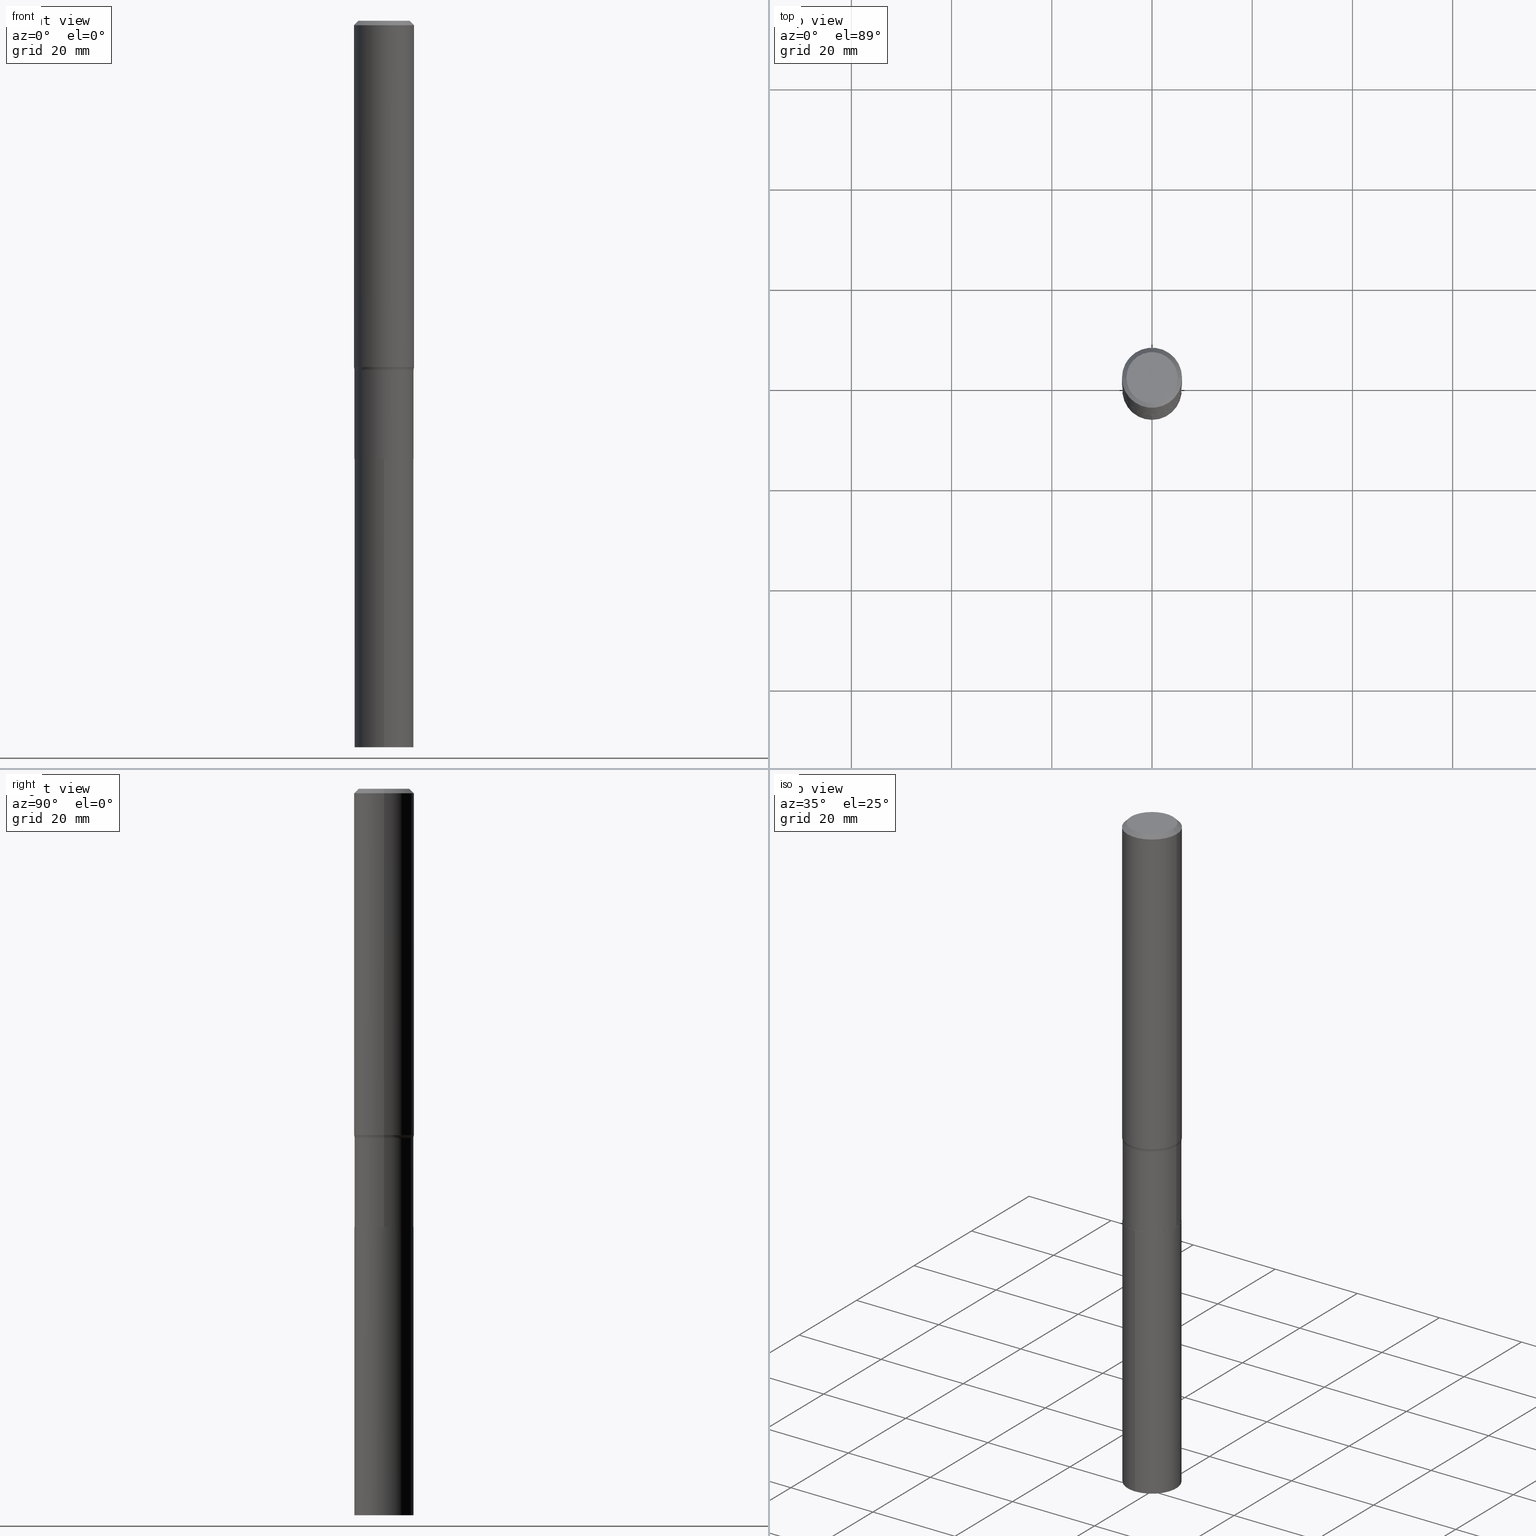
[diagram: canonical four-view strip — front | top / right | iso, engineering-drawing reading convention]
A machine part, canonical four-view strip (front | top / right | iso — engineering-drawing reading convention). The complete STEP part file that produces these views, byte-faithful:
ISO-10303-21;
HEADER;
FILE_DESCRIPTION (( 'STEP AP203' ),
    '1' );
FILE_NAME ('67906.STEP',
    '2024-04-19T17:01:46',
    ( '' ),
    ( '' ),
    'SwSTEP 2.0',
    'SolidWorks 2023',
    '' );
FILE_SCHEMA (( 'CONFIG_CONTROL_DESIGN' ));
ENDSEC;

DATA;
#1 = DIRECTION ( 'NONE',  ( -6.982962677686265922E-15, -1.000000000000000000, 2.351999994545211393E-15 ) ) ;
#2 = DATE_AND_TIME ( #329, #253 ) ;
#3 = ADVANCED_FACE ( 'NONE', ( #224 ), #292, .T. ) ;
#4 = DIRECTION ( 'NONE',  ( -2.445468806185136877E-29, 3.491481338843145188E-15, 1.000000000000000000 ) ) ;
#5 = CIRCLE ( 'NONE', #441, 0.2323000000000000065 ) ;
#6 = DIRECTION ( 'NONE',  ( -2.445459373819195632E-29, 3.491494846528029664E-15, 1.000000000000000000 ) ) ;
#7 = EDGE_LOOP ( 'NONE', ( #408, #118, #424, #368 ) ) ;
#8 = EDGE_CURVE ( 'NONE', #22, #366, #183, .T. ) ;
#9 = DIRECTION ( 'NONE',  ( 1.000000000000000000, -6.982962677686266711E-15, 4.876176775795936353E-29 ) ) ;
#10 = DIRECTION ( 'NONE',  ( -2.445468806185136597E-29, 3.491481338843145583E-15, 1.000000000000000000 ) ) ;
#11 = CARTESIAN_POINT ( 'NONE',  ( 8.423906396665941599E-29, -1.202710576791298553E-14, -3.444700000000000539 ) ) ;
#12 = DIRECTION ( 'NONE',  ( -2.445468806185136597E-29, 3.491481338843145583E-15, 1.000000000000000000 ) ) ;
#13 = ORIENTED_EDGE ( 'NONE', *, *, #388, .T. ) ;
#14 = ORIENTED_EDGE ( 'NONE', *, *, #8, .T. ) ;
#15 = DIRECTION ( 'NONE',  ( -2.445468806185136597E-29, 3.491481338843145583E-15, 1.000000000000000000 ) ) ;
#16 = DIRECTION ( 'NONE',  ( -1.000000000000000000, 6.982962677686266711E-15, 0.000000000000000000 ) ) ;
#17 = AXIS2_PLACEMENT_3D ( 'NONE', #234, #405, #372 ) ;
#18 = ADVANCED_FACE ( 'NONE', ( #392 ), #47, .T. ) ;
#19 = CARTESIAN_POINT ( 'NONE',  ( 0.000000000000000000, 0.000000000000000000, 0.000000000000000000 ) ) ;
#20 = ORIENTED_EDGE ( 'NONE', *, *, #93, .F. ) ;
#21 = APPROVAL ( #293, 'UNSPECIFIED' ) ;
#22 = VERTEX_POINT ( 'NONE', #78 ) ;
#23 = CARTESIAN_POINT ( 'NONE',  ( 8.423906396665941599E-29, -1.202710576791298553E-14, -3.444700000000000539 ) ) ;
#24 = EDGE_LOOP ( 'NONE', ( #238, #114, #28, #239 ) ) ;
#25 = APPROVAL_ROLE ( '' ) ;
#26 = AXIS2_PLACEMENT_3D ( 'NONE', #360, #411, #195 ) ;
#27 = AXIS2_PLACEMENT_3D ( 'NONE', #23, #199, #91 ) ;
#28 = ORIENTED_EDGE ( 'NONE', *, *, #352, .F. ) ;
#29 = DIRECTION ( 'NONE',  ( 1.000000000000000000, -6.982962677686266711E-15, 4.876176775795936353E-29 ) ) ;
#30 = CARTESIAN_POINT ( 'NONE',  ( 8.423906396665941599E-29, -1.202710576791298553E-14, -3.444700000000000539 ) ) ;
#31 = FACE_OUTER_BOUND ( 'NONE', #463, .T. ) ;
#32 = AXIS2_PLACEMENT_3D ( 'NONE', #325, #115, #1 ) ;
#33 =( GEOMETRIC_REPRESENTATION_CONTEXT ( 3 ) GLOBAL_UNCERTAINTY_ASSIGNED_CONTEXT ( ( #258 ) ) GLOBAL_UNIT_ASSIGNED_CONTEXT ( ( #394, #80, #376 ) ) REPRESENTATION_CONTEXT ( 'NONE', 'WORKASPACE' ) );
#34 = CIRCLE ( 'NONE', #340, 0.2323000000000000065 ) ;
#35 = DIRECTION ( 'NONE',  ( -2.445459373819195632E-29, 3.491494846528030059E-15, 1.000000000000000000 ) ) ;
#36 = CARTESIAN_POINT ( 'NONE',  ( -1.622142230026380258E-15, -0.2323000000000199350, -5.708700000000000330 ) ) ;
#37 = CALENDAR_DATE ( 2024, 19, 4 ) ;
#38 = EDGE_CURVE ( 'NONE', #22, #87, #406, .T. ) ;
#39 = ORIENTED_EDGE ( 'NONE', *, *, #314, .F. ) ;
#40 = DIRECTION ( 'NONE',  ( -6.982962677686266711E-15, -1.000000000000000000, 3.491481338843145583E-15 ) ) ;
#41 = AXIS2_PLACEMENT_3D ( 'NONE', #191, #12, #132 ) ;
#42 = AXIS2_PLACEMENT_3D ( 'NONE', #65, #453, #384 ) ;
#43 = CC_DESIGN_SECURITY_CLASSIFICATION ( #289, ( #333 ) ) ;
#44 = APPROVAL_DATE_TIME ( #227, #64 ) ;
#45 = ORIENTED_EDGE ( 'NONE', *, *, #143, .T. ) ;
#46 = APPLICATION_PROTOCOL_DEFINITION ( 'international standard', 'config_control_design', 1994, #358 ) ;
#47 = CONICAL_SURFACE ( 'NONE', #252, 0.2361999999999999933, 0.7853981633974447263 ) ;
#48 = CIRCLE ( 'NONE', #378, 0.2322999999999998955 ) ;
#49 = CC_DESIGN_APPROVAL ( #287, ( #289 ) ) ;
#50 = MANIFOLD_SOLID_BREP ( 'Body-Move/Copy2[1]', #165 ) ;
#51 = CARTESIAN_POINT ( 'NONE',  ( -4.791407986167173419E-29, -4.678554425677435978E-14, -5.708700000000000330 ) ) ;
#52 = ORIENTED_EDGE ( 'NONE', *, *, #403, .T. ) ;
#53 = CALENDAR_DATE ( 2024, 19, 4 ) ;
#54 = LINE ( 'NONE', #418, #106 ) ;
#55 = FACE_OUTER_BOUND ( 'NONE', #24, .T. ) ;
#56 = VECTOR ( 'NONE', #375, 39.37007874015748143 ) ;
#57 = EDGE_CURVE ( 'NONE', #84, #87, #186, .T. ) ;
#58 = CARTESIAN_POINT ( 'NONE',  ( 8.422683662262848798E-29, -1.202536002724356323E-14, -3.444200000000000372 ) ) ;
#59 = LINE ( 'NONE', #332, #212 ) ;
#60 = ORIENTED_EDGE ( 'NONE', *, *, #255, .T. ) ;
#61 = PRODUCT_DEFINITION_SHAPE ( 'NONE', 'NONE',  #247 ) ;
#62 = DIRECTION ( 'NONE',  ( 1.000000000000000000, -6.982962677686265922E-15, 4.876176775795935793E-29 ) ) ;
#63 = ORIENTED_EDGE ( 'NONE', *, *, #154, .F. ) ;
#64 = APPROVAL ( #216, 'UNSPECIFIED' ) ;
#65 = CARTESIAN_POINT ( 'NONE',  ( 1.396042641899260512E-28, -1.993185010045244784E-14, -5.708700000000001218 ) ) ;
#66 = CIRCLE ( 'NONE', #17, 0.2318000000000000060 ) ;
#67 = CC_DESIGN_APPROVAL ( #21, ( #333 ) ) ;
#68 = DIRECTION ( 'NONE',  ( -2.445459373819195632E-29, 3.491494846528029664E-15, 1.000000000000000000 ) ) ;
#69 = PLANE ( 'NONE',  #455 ) ;
#70 = CARTESIAN_POINT ( 'NONE',  ( -0.2007700000000000040, 1.463821008716676943E-15, 4.096137381438094301E-18 ) ) ;
#71 = DIRECTION ( 'NONE',  ( -6.982962677686265922E-15, -1.000000000000000000, 2.351999994545211393E-15 ) ) ;
#72 = EDGE_CURVE ( 'NONE', #229, #157, #296, .T. ) ;
#73 = DIRECTION ( 'NONE',  ( 1.000000000000000000, -6.982962677686269866E-15, 0.000000000000000000 ) ) ;
#74 = PERSON_AND_ORGANIZATION ( #197, #153 ) ;
#75 = EDGE_CURVE ( 'NONE', #22, #268, #324, .T. ) ;
#76 = CIRCLE ( 'NONE', #364, 0.2361999999999999933 ) ;
#77 = DIRECTION ( 'NONE',  ( 1.000000000000000000, -6.982962677686257244E-15, 0.000000000000000000 ) ) ;
#78 = CARTESIAN_POINT ( 'NONE',  ( -0.2362000000000003264, -7.826649636953230202E-15, -2.722326329823066882 ) ) ;
#79 = DATE_TIME_ROLE ( 'creation_date' ) ;
#80 =( NAMED_UNIT ( * ) PLANE_ANGLE_UNIT ( ) SI_UNIT ( $, .RADIAN. ) );
#81 = ORIENTED_EDGE ( 'NONE', *, *, #93, .T. ) ;
#82 = PERSON_AND_ORGANIZATION ( #197, #153 ) ;
#83 = VECTOR ( 'NONE', #204, 39.37007874015748143 ) ;
#84 = VERTEX_POINT ( 'NONE', #338 ) ;
#85 = PERSON_AND_ORGANIZATION ( #197, #153 ) ;
#86 = EDGE_LOOP ( 'NONE', ( #178, #447 ) ) ;
#87 = VERTEX_POINT ( 'NONE', #373 ) ;
#88 = ORIENTED_EDGE ( 'NONE', *, *, #233, .T. ) ;
#89 = AXIS2_PLACEMENT_3D ( 'NONE', #51, #68, #210 ) ;
#90 = APPROVAL_PERSON_ORGANIZATION ( #131, #287, #25 ) ;
#91 = DIRECTION ( 'NONE',  ( 6.982962677686265922E-15, 1.000000000000000000, -3.491494846528029664E-15 ) ) ;
#92 = CARTESIAN_POINT ( 'NONE',  ( 6.657364119838780176E-29, -9.504951578818589752E-15, -2.722326329823066882 ) ) ;
#93 = EDGE_CURVE ( 'NONE', #328, #366, #95, .T. ) ;
#94 = FACE_OUTER_BOUND ( 'NONE', #291, .T. ) ;
#95 = CIRCLE ( 'NONE', #41, 0.2361999999999999933 ) ;
#96 = DIRECTION ( 'NONE',  ( 0.7071067811865450192, -7.319954787623246579E-15, -0.7071067811865500152 ) ) ;
#97 = CARTESIAN_POINT ( 'NONE',  ( 6.657364119838780176E-29, -9.504951578818589752E-15, -2.722326329823066882 ) ) ;
#98 = VERTEX_POINT ( 'NONE', #231 ) ;
#99 = DATE_AND_TIME ( #53, #189 ) ;
#100 = DIRECTION ( 'NONE',  ( -2.445459373819195632E-29, 3.491494846528030059E-15, 1.000000000000000000 ) ) ;
#101 = DIRECTION ( 'NONE',  ( -6.982962677686265922E-15, -1.000000000000000000, 2.351999994545211393E-15 ) ) ;
#102 = DESIGN_CONTEXT ( 'detailed design', #358, 'design' ) ;
#103 = CARTESIAN_POINT ( 'NONE',  ( 8.422683662262848798E-29, -1.202536002724356323E-14, -3.444200000000000372 ) ) ;
#104 = ORIENTED_EDGE ( 'NONE', *, *, #437, .T. ) ;
#105 = FACE_OUTER_BOUND ( 'NONE', #410, .T. ) ;
#106 = VECTOR ( 'NONE', #96, 39.37007874015748143 ) ;
#107 = CARTESIAN_POINT ( 'NONE',  ( 1.650590775170852603E-15, 0.2322999999999879883, -3.444700000000000983 ) ) ;
#108 = DIRECTION ( 'NONE',  ( -2.445468806185136597E-29, 3.491481338843145583E-15, 1.000000000000000000 ) ) ;
#109 = CC_DESIGN_DATE_AND_TIME_ASSIGNMENT ( #2, #79, ( #247 ) ) ;
#110 = SECURITY_CLASSIFICATION_LEVEL ( 'unclassified' ) ;
#111 = MECHANICAL_CONTEXT ( 'NONE', #451, 'mechanical' ) ;
#112 = AXIS2_PLACEMENT_3D ( 'NONE', #250, #207, #203 ) ;
#113 = DIRECTION ( 'NONE',  ( 1.000000000000000000, 0.000000000000000000, 0.000000000000000000 ) ) ;
#114 = ORIENTED_EDGE ( 'NONE', *, *, #354, .T. ) ;
#115 = DIRECTION ( 'NONE',  ( -2.445459373819195632E-29, 3.491494846528030059E-15, 1.000000000000000000 ) ) ;
#116 = DATE_AND_TIME ( #37, #310 ) ;
#117 = CIRCLE ( 'NONE', #315, 0.2362000000000003264 ) ;
#118 = ORIENTED_EDGE ( 'NONE', *, *, #423, .F. ) ;
#119 = AXIS2_PLACEMENT_3D ( 'NONE', #30, #211, #62 ) ;
#120 = CARTESIAN_POINT ( 'NONE',  ( -0.3122999999999999110, -7.372074274023329378E-15, -2.746999999999999886 ) ) ;
#121 = ORIENTED_EDGE ( 'NONE', *, *, #72, .F. ) ;
#122 = EDGE_LOOP ( 'NONE', ( #259, #201, #88, #257 ) ) ;
#123 = DIRECTION ( 'NONE',  ( -2.445468806185136597E-29, 3.491481338843145583E-15, 1.000000000000000000 ) ) ;
#124 = FACE_OUTER_BOUND ( 'NONE', #279, .T. ) ;
#125 = DIRECTION ( 'NONE',  ( -2.445468806185136597E-29, 3.491481338843145583E-15, 1.000000000000000000 ) ) ;
#126 = ADVANCED_FACE ( 'NONE', ( #305 ), #459, .T. ) ;
#127 = DIRECTION ( 'NONE',  ( 1.000000000000000000, -6.982962677686266711E-15, 4.876140833081945105E-29 ) ) ;
#128 = TOROIDAL_SURFACE ( 'NONE', #371, 0.3122999999999999110, 0.08000000000000000167 ) ;
#129 = ORIENTED_EDGE ( 'NONE', *, *, #439, .F. ) ;
#130 = EDGE_CURVE ( 'NONE', #435, #98, #262, .T. ) ;
#131 = PERSON_AND_ORGANIZATION ( #197, #153 ) ;
#132 = DIRECTION ( 'NONE',  ( 1.000000000000000000, -6.982962677686266711E-15, 0.000000000000000000 ) ) ;
#133 = EDGE_LOOP ( 'NONE', ( #244, #163, #460, #104 ) ) ;
#134 = CYLINDRICAL_SURFACE ( 'NONE', #317, 0.2362000000000001598 ) ;
#135 = DIRECTION ( 'NONE',  ( 1.000000000000000000, -6.982962677686266711E-15, 4.876176775795935232E-29 ) ) ;
#136 = ADVANCED_FACE ( 'NONE', ( #94 ), #303, .T. ) ;
#137 = CARTESIAN_POINT ( 'NONE',  ( -1.622142230026435478E-15, -0.2323000000000120246, -3.444700000000000095 ) ) ;
#138 = LINE ( 'NONE', #251, #304 ) ;
#139 = DIRECTION ( 'NONE',  ( 2.438088387897960049E-29, -3.491481338843145188E-15, -1.000000000000000000 ) ) ;
#140 = CARTESIAN_POINT ( 'NONE',  ( 8.423906396665941599E-29, -1.202710576791298553E-14, -3.444700000000000539 ) ) ;
#141 = CYLINDRICAL_SURFACE ( 'NONE', #112, 0.2322999999999999510 ) ;
#142 = AXIS2_PLACEMENT_3D ( 'NONE', #350, #208, #29 ) ;
#143 = EDGE_CURVE ( 'NONE', #268, #22, #117, .T. ) ;
#144 = DIRECTION ( 'NONE',  ( -2.445468806185136597E-29, 3.491481338843145583E-15, 1.000000000000000000 ) ) ;
#145 = APPLICATION_PROTOCOL_DEFINITION ( 'international standard', 'config_control_design', 1994, #451 ) ;
#146 = EDGE_LOOP ( 'NONE', ( #228, #379, #52, #467 ) ) ;
#147 = CIRCLE ( 'NONE', #399, 0.2323000000000000065 ) ;
#148 = CALENDAR_DATE ( 2024, 19, 4 ) ;
#149 = LOCAL_TIME ( 13, 1, 46.00000000000000000, #256 ) ;
#150 = PERSON_AND_ORGANIZATION ( #197, #153 ) ;
#151 = VERTEX_POINT ( 'NONE', #242 ) ;
#152 = AXIS2_PLACEMENT_3D ( 'NONE', #335, #200, #275 ) ;
#153 = ORGANIZATION ( 'UNSPECIFIED', 'UNSPECIFIED', '' ) ;
#154 = EDGE_CURVE ( 'NONE', #229, #365, #59, .T. ) ;
#155 = CARTESIAN_POINT ( 'NONE',  ( 0.2007700000000000040, -1.560767496960719869E-15, 4.096137381458473721E-18 ) ) ;
#156 = CARTESIAN_POINT ( 'NONE',  ( 1.650590775170824402E-15, 0.2322999999999800502, -5.708700000000002106 ) ) ;
#157 = VERTEX_POINT ( 'NONE', #156 ) ;
#158 = DIRECTION ( 'NONE',  ( -2.445468806185136597E-29, 3.491481338843145583E-15, 1.000000000000000000 ) ) ;
#159 = DIRECTION ( 'NONE',  ( 1.000000000000000000, -6.982962677686263555E-15, 0.000000000000000000 ) ) ;
#160 = VERTEX_POINT ( 'NONE', #155 ) ;
#161 = VECTOR ( 'NONE', #190, 39.37007874015748143 ) ;
#162 = DIRECTION ( 'NONE',  ( 1.000000000000000000, -6.982962677686268288E-15, 0.000000000000000000 ) ) ;
#163 = ORIENTED_EDGE ( 'NONE', *, *, #143, .F. ) ;
#164 = ORIENTED_EDGE ( 'NONE', *, *, #343, .T. ) ;
#165 = CLOSED_SHELL ( 'NONE', ( #218, #430, #3, #298 ) ) ;
#166 = ADVANCED_FACE ( 'NONE', ( #124 ), #128, .F. ) ;
#167 = CONICAL_SURFACE ( 'NONE', #446, 0.2318000000000000060, 0.7853981633972775267 ) ;
#168 = ORIENTED_EDGE ( 'NONE', *, *, #72, .T. ) ;
#169 = CARTESIAN_POINT ( 'NONE',  ( 6.717702810590569953E-29, -9.591099237802120838E-15, -2.746999999999999886 ) ) ;
#170 = EDGE_CURVE ( 'NONE', #415, #366, #196, .T. ) ;
#171 = DIRECTION ( 'NONE',  ( -2.445468806185136597E-29, 3.491481338843145583E-15, 1.000000000000000000 ) ) ;
#172 = CYLINDRICAL_SURFACE ( 'NONE', #174, 0.2323000000000000065 ) ;
#173 = CARTESIAN_POINT ( 'NONE',  ( 0.2362000000000001598, -1.649375784469497314E-15, 1.151752954443000929E-29 ) ) ;
#174 = AXIS2_PLACEMENT_3D ( 'NONE', #213, #35, #101 ) ;
#175 = EDGE_CURVE ( 'NONE', #365, #401, #147, .T. ) ;
#176 = CARTESIAN_POINT ( 'NONE',  ( 0.3122999999999999110, -1.177187848204354040E-14, -2.746999999999999886 ) ) ;
#177 = PERSON_AND_ORGANIZATION_ROLE ( 'creator' ) ;
#178 = ORIENTED_EDGE ( 'NONE', *, *, #423, .T. ) ;
#179 = AXIS2_PLACEMENT_3D ( 'NONE', #19, #449, #135 ) ;
#180 = CIRCLE ( 'NONE', #42, 0.2323000000000000065 ) ;
#181 = PERSON_AND_ORGANIZATION_ROLE ( 'design_owner' ) ;
#182 = EDGE_CURVE ( 'NONE', #366, #328, #76, .T. ) ;
#183 = LINE ( 'NONE', #433, #454 ) ;
#184 = ORIENTED_EDGE ( 'NONE', *, *, #427, .T. ) ;
#185 = CC_DESIGN_PERSON_AND_ORGANIZATION_ASSIGNMENT ( #362, #181, ( #280 ) ) ;
#186 = LINE ( 'NONE', #464, #468 ) ;
#187 = APPROVAL_PERSON_ORGANIZATION ( #82, #64, #436 ) ;
#188 = FACE_OUTER_BOUND ( 'NONE', #337, .T. ) ;
#189 = LOCAL_TIME ( 13, 1, 46.00000000000000000, #273 ) ;
#190 = DIRECTION ( 'NONE',  ( -2.445468806185136877E-29, 3.491481338843145188E-15, 1.000000000000000000 ) ) ;
#191 = CARTESIAN_POINT ( 'NONE',  ( 8.664295980313998742E-31, -1.237031838352135065E-16, -0.03543000000000024602 ) ) ;
#192 = VERTEX_POINT ( 'NONE', #209 ) ;
#193 = ORIENTED_EDGE ( 'NONE', *, *, #243, .T. ) ;
#194 = CARTESIAN_POINT ( 'NONE',  ( 0.2362000000000003264, -1.115432736328808628E-14, -2.722326329823066882 ) ) ;
#195 = DIRECTION ( 'NONE',  ( -6.982962677686265922E-15, -1.000000000000000000, 4.703999989090422785E-15 ) ) ;
#196 = LINE ( 'NONE', #225, #346 ) ;
#197 = PERSON ( 'UNSPECIFIED', 'UNSPECIFIED', 'UNSPECIFIED', ('UNSPECIFIED'), ('UNSPECIFIED'), ('UNSPECIFIED') ) ;
#198 = CIRCLE ( 'NONE', #461, 0.2007700000000000040 ) ;
#199 = DIRECTION ( 'NONE',  ( 2.445459373819195632E-29, -3.491494846528029664E-15, -1.000000000000000000 ) ) ;
#200 = DIRECTION ( 'NONE',  ( -2.445468806185136597E-29, 3.491481338843145583E-15, 1.000000000000000000 ) ) ;
#201 = ORIENTED_EDGE ( 'NONE', *, *, #75, .T. ) ;
#202 = ORIENTED_EDGE ( 'NONE', *, *, #343, .F. ) ;
#203 = DIRECTION ( 'NONE',  ( 1.000000000000000000, -6.982962677686266711E-15, 4.876176775795935232E-29 ) ) ;
#204 = DIRECTION ( 'NONE',  ( -0.7071067811864267805, 7.493145998869918709E-15, 0.7071067811866682540 ) ) ;
#205 = CIRCLE ( 'NONE', #356, 0.08000000000000002942 ) ;
#206 = FACE_OUTER_BOUND ( 'NONE', #133, .T. ) ;
#207 = DIRECTION ( 'NONE',  ( -2.445468806185136597E-29, 3.491481338843145583E-15, 1.000000000000000000 ) ) ;
#208 = DIRECTION ( 'NONE',  ( -2.445468806185136597E-29, 3.491481338843145583E-15, 1.000000000000000000 ) ) ;
#209 = CARTESIAN_POINT ( 'NONE',  ( 0.2322999999999998955, -1.121324146782864033E-14, -2.746999999999999886 ) ) ;
#210 = DIRECTION ( 'NONE',  ( -6.982962677686265922E-15, -1.000000000000000000, 3.491494846528029664E-15 ) ) ;
#211 = DIRECTION ( 'NONE',  ( -2.438088387897960049E-29, 3.491481338843145188E-15, 1.000000000000000000 ) ) ;
#212 = VECTOR ( 'NONE', #6, 39.37007874015748143 ) ;
#213 = CARTESIAN_POINT ( 'NONE',  ( 8.423906396665941599E-29, -1.202710576791298553E-14, -3.444700000000000539 ) ) ;
#214 = PERSON_AND_ORGANIZATION_ROLE ( 'classification_officer' ) ;
#215 = DIRECTION ( 'NONE',  ( -2.445468806185136877E-29, 3.491481338843145188E-15, 1.000000000000000000 ) ) ;
#216 = APPROVAL_STATUS ( 'not_yet_approved' ) ;
#217 = ORIENTED_EDGE ( 'NONE', *, *, #175, .F. ) ;
#218 = ADVANCED_FACE ( 'NONE', ( #31 ), #172, .T. ) ;
#219 = EDGE_LOOP ( 'NONE', ( #45, #14, #20, #223 ) ) ;
#220 = CLOSED_SHELL ( 'NONE', ( #272, #18, #306, #166, #226, #136, #398, #421, #126, #326, #339, #260 ) ) ;
#221 = CALENDAR_DATE ( 2024, 19, 4 ) ;
#222 = CIRCLE ( 'NONE', #240, 0.2007700000000000040 ) ;
#223 = ORIENTED_EDGE ( 'NONE', *, *, #233, .F. ) ;
#224 = FACE_OUTER_BOUND ( 'NONE', #450, .T. ) ;
#225 = CARTESIAN_POINT ( 'NONE',  ( -0.2361999999999999933, 1.525672600634282550E-15, -0.03543000000000024602 ) ) ;
#226 = ADVANCED_FACE ( 'NONE', ( #188 ), #141, .T. ) ;
#227 = DATE_AND_TIME ( #221, #149 ) ;
#228 = ORIENTED_EDGE ( 'NONE', *, *, #354, .F. ) ;
#229 = VERTEX_POINT ( 'NONE', #36 ) ;
#230 = CARTESIAN_POINT ( 'NONE',  ( 8.423906396665941599E-29, -1.202710576791298553E-14, -3.444700000000000539 ) ) ;
#231 = CARTESIAN_POINT ( 'NONE',  ( -0.2318000000000000060, -1.037741847924696126E-14, -3.444700000000000539 ) ) ;
#232 = AXIS2_PLACEMENT_3D ( 'NONE', #169, #171, #316 ) ;
#233 = EDGE_CURVE ( 'NONE', #268, #328, #351, .T. ) ;
#234 = CARTESIAN_POINT ( 'NONE',  ( 8.423906396665941599E-29, -1.202710576791298553E-14, -3.444700000000000539 ) ) ;
#235 = ORIENTED_EDGE ( 'NONE', *, *, #278, .T. ) ;
#236 = APPROVAL_DATE_TIME ( #99, #287 ) ;
#237 = PLANE ( 'NONE',  #27 ) ;
#238 = ORIENTED_EDGE ( 'NONE', *, *, #130, .T. ) ;
#239 = ORIENTED_EDGE ( 'NONE', *, *, #403, .F. ) ;
#240 = AXIS2_PLACEMENT_3D ( 'NONE', #267, #445, #127 ) ;
#241 = DIRECTION ( 'NONE',  ( 1.000000000000000000, -6.982962677686268288E-15, 0.000000000000000000 ) ) ;
#242 = CARTESIAN_POINT ( 'NONE',  ( 0.2323000000000000065, -1.364750225727008272E-14, -3.444200000000000372 ) ) ;
#243 = EDGE_CURVE ( 'NONE', #157, #401, #318, .T. ) ;
#244 = ORIENTED_EDGE ( 'NONE', *, *, #38, .F. ) ;
#245 = PLANE ( 'NONE',  #89 ) ;
#246 = ORIENTED_EDGE ( 'NONE', *, *, #57, .F. ) ;
#247 = PRODUCT_DEFINITION ( 'UNKNOWN', '', #333, #102 ) ;
#248 = FACE_OUTER_BOUND ( 'NONE', #301, .T. ) ;
#249 = AXIS2_PLACEMENT_3D ( 'NONE', #11, #342, #162 ) ;
#250 = CARTESIAN_POINT ( 'NONE',  ( 0.000000000000000000, 0.000000000000000000, 0.000000000000000000 ) ) ;
#251 = CARTESIAN_POINT ( 'NONE',  ( 0.2318000000000000060, -1.364575651660066201E-14, -3.444700000000000539 ) ) ;
#252 = AXIS2_PLACEMENT_3D ( 'NONE', #294, #438, #331 ) ;
#253 = LOCAL_TIME ( 13, 1, 46.00000000000000000, #361 ) ;
#254 = APPROVAL_ROLE ( '' ) ;
#255 = EDGE_CURVE ( 'NONE', #160, #328, #54, .T. ) ;
#256 = COORDINATED_UNIVERSAL_TIME_OFFSET ( 5, 0, .BEHIND. ) ;
#257 = ORIENTED_EDGE ( 'NONE', *, *, #182, .F. ) ;
#258 = UNCERTAINTY_MEASURE_WITH_UNIT (LENGTH_MEASURE( 1.000000000000000082E-05 ), #394, 'distance_accuracy_value', 'NONE');
#259 = ORIENTED_EDGE ( 'NONE', *, *, #8, .F. ) ;
#260 = ADVANCED_FACE ( 'NONE', ( #274 ), #167, .T. ) ;
#261 = DIRECTION ( 'NONE',  ( 1.000000000000000000, -6.982962677686265133E-15, 4.883557194083111780E-29 ) ) ;
#262 = CIRCLE ( 'NONE', #152, 0.2318000000000000060 ) ;
#263 = APPROVAL_DATE_TIME ( #116, #21 ) ;
#264 = AXIS2_PLACEMENT_3D ( 'NONE', #286, #100, #425 ) ;
#265 = DIRECTION ( 'NONE',  ( 7.105427357601001859E-15, 1.000000000000000000, -3.491481338843145583E-15 ) ) ;
#266 = DIRECTION ( 'NONE',  ( -0.7071067811865450192, 2.468850131082230634E-15, -0.7071067811865500152 ) ) ;
#267 = CARTESIAN_POINT ( 'NONE',  ( -1.001697619218023151E-46, 1.430158722866391908E-32, 4.096137381448114529E-18 ) ) ;
#268 = VERTEX_POINT ( 'NONE', #194 ) ;
#269 = EDGE_CURVE ( 'NONE', #84, #151, #5, .T. ) ;
#270 = CONICAL_SURFACE ( 'NONE', #249, 0.2318000000000000060, 0.7853981633972775267 ) ;
#271 = EDGE_LOOP ( 'NONE', ( #277, #60, #81, #416 ) ) ;
#272 = ADVANCED_FACE ( 'NONE', ( #55 ), #270, .T. ) ;
#273 = COORDINATED_UNIVERSAL_TIME_OFFSET ( 5, 0, .BEHIND. ) ;
#274 = FACE_OUTER_BOUND ( 'NONE', #146, .T. ) ;
#275 = DIRECTION ( 'NONE',  ( 1.000000000000000000, -6.982962677686268288E-15, 0.000000000000000000 ) ) ;
#276 = ORIENTED_EDGE ( 'NONE', *, *, #175, .T. ) ;
#277 = ORIENTED_EDGE ( 'NONE', *, *, #312, .F. ) ;
#278 = EDGE_CURVE ( 'NONE', #151, #192, #448, .T. ) ;
#279 = EDGE_LOOP ( 'NONE', ( #347, #444, #164, #129 ) ) ;
#280 = PRODUCT ( '67906', '67906', '', ( #111 ) ) ;
#281 = FACE_OUTER_BOUND ( 'NONE', #122, .T. ) ;
#282 = DIRECTION ( 'NONE',  ( -2.445468806185136597E-29, 3.491481338843145583E-15, 1.000000000000000000 ) ) ;
#283 = DIRECTION ( 'NONE',  ( 1.000000000000000000, -6.982962677686266711E-15, 0.000000000000000000 ) ) ;
#284 = DIRECTION ( 'NONE',  ( -1.000000000000000000, 6.982962677686265922E-15, -4.876176775795935793E-29 ) ) ;
#285 = AXIS2_PLACEMENT_3D ( 'NONE', #311, #282, #380 ) ;
#286 = CARTESIAN_POINT ( 'NONE',  ( 8.423906396665941599E-29, -1.202710576791298553E-14, -3.444700000000000539 ) ) ;
#287 = APPROVAL ( #422, 'UNSPECIFIED' ) ;
#288 = CIRCLE ( 'NONE', #285, 0.2322999999999998955 ) ;
#289 = SECURITY_CLASSIFICATION ( '', '', #110 ) ;
#290 = DATE_AND_TIME ( #148, #428 ) ;
#291 = EDGE_LOOP ( 'NONE', ( #246, #442, #235, #202 ) ) ;
#292 = CYLINDRICAL_SURFACE ( 'NONE', #32, 0.2323000000000000065 ) ;
#293 = APPROVAL_STATUS ( 'not_yet_approved' ) ;
#294 = CARTESIAN_POINT ( 'NONE',  ( 8.664295980313998742E-31, -1.237031838352135065E-16, -0.03543000000000024602 ) ) ;
#295 = COORDINATED_UNIVERSAL_TIME_OFFSET ( 5, 0, .BEHIND. ) ;
#296 = CIRCLE ( 'NONE', #26, 0.2323000000000000065 ) ;
#297 = AXIS2_PLACEMENT_3D ( 'NONE', #396, #431, #113 ) ;
#298 = ADVANCED_FACE ( 'NONE', ( #370 ), #237, .F. ) ;
#299 = CARTESIAN_POINT ( 'NONE',  ( 0.000000000000000000, 0.000000000000000000, 0.000000000000000000 ) ) ;
#300 = DIRECTION ( 'NONE',  ( -2.445468806185136597E-29, 3.491481338843145583E-15, 1.000000000000000000 ) ) ;
#301 = EDGE_LOOP ( 'NONE', ( #327, #39 ) ) ;
#302 = FACE_OUTER_BOUND ( 'NONE', #86, .T. ) ;
#303 = CYLINDRICAL_SURFACE ( 'NONE', #179, 0.2322999999999999510 ) ;
#304 = VECTOR ( 'NONE', #386, 39.37007874015748143 ) ;
#305 = FACE_OUTER_BOUND ( 'NONE', #7, .T. ) ;
#306 = ADVANCED_FACE ( 'NONE', ( #341 ), #134, .T. ) ;
#307 = DIRECTION ( 'NONE',  ( 1.000000000000000000, -6.982962677686265922E-15, 0.000000000000000000 ) ) ;
#308 = DIRECTION ( 'NONE',  ( 2.445468806185136597E-29, -3.491481338843145583E-15, -1.000000000000000000 ) ) ;
#309 = AXIS2_PLACEMENT_3D ( 'NONE', #120, #265, #402 ) ;
#310 = LOCAL_TIME ( 13, 1, 46.00000000000000000, #295 ) ;
#311 = CARTESIAN_POINT ( 'NONE',  ( 6.717702810590569953E-29, -9.591099237802120838E-15, -2.746999999999999886 ) ) ;
#312 = EDGE_CURVE ( 'NONE', #160, #415, #222, .T. ) ;
#313 = CARTESIAN_POINT ( 'NONE',  ( -5.008488096090115757E-47, 7.150793614331959538E-33, 2.048068690724057264E-18 ) ) ;
#314 = EDGE_CURVE ( 'NONE', #98, #435, #66, .T. ) ;
#315 = AXIS2_PLACEMENT_3D ( 'NONE', #97, #10, #404 ) ;
#316 = DIRECTION ( 'NONE',  ( 1.000000000000000000, -6.982962677686265133E-15, 4.883557194083111780E-29 ) ) ;
#317 = AXIS2_PLACEMENT_3D ( 'NONE', #299, #123, #9 ) ;
#318 = LINE ( 'NONE', #345, #56 ) ;
#319 = PERSON_AND_ORGANIZATION_ROLE ( 'design_supplier' ) ;
#320 = CC_DESIGN_PERSON_AND_ORGANIZATION_ASSIGNMENT ( #85, #319, ( #333 ) ) ;
#321 =( LENGTH_UNIT ( ) NAMED_UNIT ( * ) SI_UNIT ( $, .METRE. ) );
#322 = ORIENTED_EDGE ( 'NONE', *, *, #427, .F. ) ;
#323 = PERSON_AND_ORGANIZATION_ROLE ( 'creator' ) ;
#324 = CIRCLE ( 'NONE', #440, 0.2362000000000003264 ) ;
#325 = CARTESIAN_POINT ( 'NONE',  ( 8.423906396665941599E-29, -1.202710576791298553E-14, -3.444700000000000539 ) ) ;
#326 = ADVANCED_FACE ( 'NONE', ( #302 ), #69, .F. ) ;
#327 = ORIENTED_EDGE ( 'NONE', *, *, #130, .F. ) ;
#328 = VERTEX_POINT ( 'NONE', #344 ) ;
#329 = CALENDAR_DATE ( 2024, 19, 4 ) ;
#330 = ORIENTED_EDGE ( 'NONE', *, *, #243, .F. ) ;
#331 = DIRECTION ( 'NONE',  ( -1.000000000000000000, 6.982962677686266711E-15, 0.000000000000000000 ) ) ;
#332 = CARTESIAN_POINT ( 'NONE',  ( -1.622142230026435478E-15, -0.2323000000000120246, -3.444700000000000095 ) ) ;
#333 = PRODUCT_DEFINITION_FORMATION_WITH_SPECIFIED_SOURCE ( 'ANY', '', #280, .NOT_KNOWN. ) ;
#334 = PRODUCT_RELATED_PRODUCT_CATEGORY ( 'detail', '', ( #280 ) ) ;
#335 = CARTESIAN_POINT ( 'NONE',  ( 8.423906396665941599E-29, -1.202710576791298553E-14, -3.444700000000000539 ) ) ;
#336 = EDGE_LOOP ( 'NONE', ( #276, #184 ) ) ;
#337 = EDGE_LOOP ( 'NONE', ( #363, #412, #413, #397 ) ) ;
#338 = CARTESIAN_POINT ( 'NONE',  ( -0.2323000000000000065, -9.157638857352128074E-15, -3.444200000000000372 ) ) ;
#339 = ADVANCED_FACE ( 'NONE', ( #248 ), #429, .F. ) ;
#340 = AXIS2_PLACEMENT_3D ( 'NONE', #103, #357, #462 ) ;
#341 = FACE_OUTER_BOUND ( 'NONE', #219, .T. ) ;
#342 = DIRECTION ( 'NONE',  ( -2.445468806185136597E-29, 3.491481338843145583E-15, 1.000000000000000000 ) ) ;
#343 = EDGE_CURVE ( 'NONE', #87, #192, #288, .T. ) ;
#344 = CARTESIAN_POINT ( 'NONE',  ( 0.2361999999999999933, -1.773078968304709711E-15, -0.03543000000000024602 ) ) ;
#345 = CARTESIAN_POINT ( 'NONE',  ( 1.650590775170796792E-15, 0.2322999999999879883, -3.444700000000000983 ) ) ;
#346 = VECTOR ( 'NONE', #266, 39.37007874015748143 ) ;
#347 = ORIENTED_EDGE ( 'NONE', *, *, #75, .F. ) ;
#348 = ADVANCED_BREP_SHAPE_REPRESENTATION ( '67906', ( #50, #359, #297 ), #33 ) ;
#349 = CYLINDRICAL_SURFACE ( 'NONE', #142, 0.2362000000000001598 ) ;
#350 = CARTESIAN_POINT ( 'NONE',  ( 0.000000000000000000, 0.000000000000000000, 0.000000000000000000 ) ) ;
#351 = LINE ( 'NONE', #173, #383 ) ;
#352 = EDGE_CURVE ( 'NONE', #151, #84, #34, .T. ) ;
#353 = CARTESIAN_POINT ( 'NONE',  ( -1.001697619218023151E-46, 1.430158722866391908E-32, 4.096137381448114529E-18 ) ) ;
#354 = EDGE_CURVE ( 'NONE', #98, #84, #456, .T. ) ;
#355 = CARTESIAN_POINT ( 'NONE',  ( 0.2318000000000000060, -1.364575651660066201E-14, -3.444700000000000539 ) ) ;
#356 = AXIS2_PLACEMENT_3D ( 'NONE', #176, #40, #77 ) ;
#357 = DIRECTION ( 'NONE',  ( -2.445468806185136597E-29, 3.491481338843145583E-15, 1.000000000000000000 ) ) ;
#358 = APPLICATION_CONTEXT ( 'configuration controlled 3d designs of mechanical parts and assemblies' ) ;
#359 = MANIFOLD_SOLID_BREP ( 'Body-Move/Copy2[2]', #220 ) ;
#360 = CARTESIAN_POINT ( 'NONE',  ( 1.396042641899260512E-28, -1.993185010045244784E-14, -5.708700000000001218 ) ) ;
#361 = COORDINATED_UNIVERSAL_TIME_OFFSET ( 5, 0, .BEHIND. ) ;
#362 = PERSON_AND_ORGANIZATION ( #197, #153 ) ;
#363 = ORIENTED_EDGE ( 'NONE', *, *, #352, .T. ) ;
#364 = AXIS2_PLACEMENT_3D ( 'NONE', #458, #382, #283 ) ;
#365 = VERTEX_POINT ( 'NONE', #137 ) ;
#366 = VERTEX_POINT ( 'NONE', #381 ) ;
#367 = ORIENTED_EDGE ( 'NONE', *, *, #154, .T. ) ;
#368 = ORIENTED_EDGE ( 'NONE', *, *, #182, .T. ) ;
#369 = CC_DESIGN_DATE_AND_TIME_ASSIGNMENT ( #290, #434, ( #289 ) ) ;
#370 = FACE_OUTER_BOUND ( 'NONE', #336, .T. ) ;
#371 = AXIS2_PLACEMENT_3D ( 'NONE', #443, #125, #261 ) ;
#372 = DIRECTION ( 'NONE',  ( 1.000000000000000000, -6.982962677686268288E-15, 0.000000000000000000 ) ) ;
#373 = CARTESIAN_POINT ( 'NONE',  ( -0.2322999999999998955, -9.157638857352128074E-15, -2.746999999999999886 ) ) ;
#374 = CC_DESIGN_PERSON_AND_ORGANIZATION_ASSIGNMENT ( #400, #323, ( #333 ) ) ;
#375 = DIRECTION ( 'NONE',  ( -2.445459373819195632E-29, 3.491494846528029664E-15, 1.000000000000000000 ) ) ;
#376 =( NAMED_UNIT ( * ) SI_UNIT ( $, .STERADIAN. ) SOLID_ANGLE_UNIT ( ) );
#377 = CARTESIAN_POINT ( 'NONE',  ( 8.664295980313998742E-31, -1.237031838352135065E-16, -0.03543000000000024602 ) ) ;
#378 = AXIS2_PLACEMENT_3D ( 'NONE', #389, #108, #73 ) ;
#379 = ORIENTED_EDGE ( 'NONE', *, *, #314, .T. ) ;
#380 = DIRECTION ( 'NONE',  ( 1.000000000000000000, -6.982962677686269866E-15, 0.000000000000000000 ) ) ;
#381 = CARTESIAN_POINT ( 'NONE',  ( -0.2361999999999999933, -3.136025439461542314E-15, -0.03543000000000024602 ) ) ;
#382 = DIRECTION ( 'NONE',  ( -2.445468806185136597E-29, 3.491481338843145583E-15, 1.000000000000000000 ) ) ;
#383 = VECTOR ( 'NONE', #390, 39.37007874015748143 ) ;
#384 = DIRECTION ( 'NONE',  ( -6.982962677686265922E-15, -1.000000000000000000, 4.703999989090422785E-15 ) ) ;
#385 = DIMENSIONAL_EXPONENTS ( 1.000000000000000000, 0.000000000000000000, 0.000000000000000000, 0.000000000000000000, 0.000000000000000000, 0.000000000000000000, 0.000000000000000000 ) ;
#386 = DIRECTION ( 'NONE',  ( 0.7071067811864267805, -2.468850131080992517E-15, 0.7071067811866682540 ) ) ;
#387 = DIRECTION ( 'NONE',  ( -2.445459373819195632E-29, 3.491494846528030059E-15, 1.000000000000000000 ) ) ;
#388 = EDGE_CURVE ( 'NONE', #157, #229, #180, .T. ) ;
#389 = CARTESIAN_POINT ( 'NONE',  ( 6.717702810590569953E-29, -9.591099237802120838E-15, -2.746999999999999886 ) ) ;
#390 = DIRECTION ( 'NONE',  ( -2.445468806185136877E-29, 3.491481338843145188E-15, 1.000000000000000000 ) ) ;
#391 = APPROVAL_PERSON_ORGANIZATION ( #393, #21, #254 ) ;
#392 = FACE_OUTER_BOUND ( 'NONE', #271, .T. ) ;
#393 = PERSON_AND_ORGANIZATION ( #197, #153 ) ;
#394 =( CONVERSION_BASED_UNIT ( 'INCH', #465 ) LENGTH_UNIT ( ) NAMED_UNIT ( #385 ) );
#395 = ORIENTED_EDGE ( 'NONE', *, *, #388, .F. ) ;
#396 = CARTESIAN_POINT ( 'NONE',  ( 0.000000000000000000, 0.000000000000000000, 0.000000000000000000 ) ) ;
#397 = ORIENTED_EDGE ( 'NONE', *, *, #278, .F. ) ;
#398 = ADVANCED_FACE ( 'NONE', ( #206 ), #432, .F. ) ;
#399 = AXIS2_PLACEMENT_3D ( 'NONE', #140, #387, #71 ) ;
#400 = PERSON_AND_ORGANIZATION ( #197, #153 ) ;
#401 = VERTEX_POINT ( 'NONE', #107 ) ;
#402 = DIRECTION ( 'NONE',  ( -1.000000000000000000, 7.105427357600995548E-15, 0.000000000000000000 ) ) ;
#403 = EDGE_CURVE ( 'NONE', #435, #151, #138, .T. ) ;
#404 = DIRECTION ( 'NONE',  ( 1.000000000000000000, -6.982962677686263555E-15, 0.000000000000000000 ) ) ;
#405 = DIRECTION ( 'NONE',  ( -2.445468806185136597E-29, 3.491481338843145583E-15, 1.000000000000000000 ) ) ;
#406 = CIRCLE ( 'NONE', #309, 0.08000000000000002942 ) ;
#407 = CIRCLE ( 'NONE', #264, 0.2323000000000000065 ) ;
#408 = ORIENTED_EDGE ( 'NONE', *, *, #255, .F. ) ;
#409 = CC_DESIGN_PERSON_AND_ORGANIZATION_ASSIGNMENT ( #150, #177, ( #247 ) ) ;
#410 = EDGE_LOOP ( 'NONE', ( #121, #395 ) ) ;
#411 = DIRECTION ( 'NONE',  ( -2.445459373819195632E-29, 3.491494846528030059E-15, 1.000000000000000000 ) ) ;
#412 = ORIENTED_EDGE ( 'NONE', *, *, #57, .T. ) ;
#413 = ORIENTED_EDGE ( 'NONE', *, *, #437, .F. ) ;
#414 = CARTESIAN_POINT ( 'NONE',  ( 0.2322999999999999510, -1.622142230026519492E-15, 1.132735865017395539E-29 ) ) ;
#415 = VERTEX_POINT ( 'NONE', #70 ) ;
#416 = ORIENTED_EDGE ( 'NONE', *, *, #170, .F. ) ;
#417 = SHAPE_DEFINITION_REPRESENTATION ( #61, #348 ) ;
#418 = CARTESIAN_POINT ( 'NONE',  ( 0.2361999999999999933, -1.744152810908849251E-15, -0.03543000000000024602 ) ) ;
#419 = CC_DESIGN_APPROVAL ( #64, ( #247 ) ) ;
#420 = DIRECTION ( 'NONE',  ( 1.000000000000000000, -6.982962677686266711E-15, 4.876140833081945105E-29 ) ) ;
#421 = ADVANCED_FACE ( 'NONE', ( #281 ), #349, .T. ) ;
#422 = APPROVAL_STATUS ( 'not_yet_approved' ) ;
#423 = EDGE_CURVE ( 'NONE', #415, #160, #198, .T. ) ;
#424 = ORIENTED_EDGE ( 'NONE', *, *, #170, .T. ) ;
#425 = DIRECTION ( 'NONE',  ( -6.982962677686265922E-15, -1.000000000000000000, 2.351999994545211393E-15 ) ) ;
#426 = AXIS2_PLACEMENT_3D ( 'NONE', #377, #308, #16 ) ;
#427 = EDGE_CURVE ( 'NONE', #401, #365, #407, .T. ) ;
#428 = LOCAL_TIME ( 13, 1, 46.00000000000000000, #466 ) ;
#429 = PLANE ( 'NONE',  #119 ) ;
#430 = ADVANCED_FACE ( 'NONE', ( #105 ), #245, .F. ) ;
#431 = DIRECTION ( 'NONE',  ( 0.000000000000000000, 0.000000000000000000, 1.000000000000000000 ) ) ;
#432 = TOROIDAL_SURFACE ( 'NONE', #232, 0.3122999999999999110, 0.08000000000000000167 ) ;
#433 = CARTESIAN_POINT ( 'NONE',  ( -0.2362000000000001598, 1.678301941865357775E-15, -1.161852468318209598E-29 ) ) ;
#434 = DATE_TIME_ROLE ( 'classification_date' ) ;
#435 = VERTEX_POINT ( 'NONE', #355 ) ;
#436 = APPROVAL_ROLE ( '' ) ;
#437 = EDGE_CURVE ( 'NONE', #192, #87, #48, .T. ) ;
#438 = DIRECTION ( 'NONE',  ( 2.445468806185136597E-29, -3.491481338843145583E-15, -1.000000000000000000 ) ) ;
#439 = EDGE_CURVE ( 'NONE', #268, #192, #205, .T. ) ;
#440 = AXIS2_PLACEMENT_3D ( 'NONE', #92, #300, #159 ) ;
#441 = AXIS2_PLACEMENT_3D ( 'NONE', #58, #15, #307 ) ;
#442 = ORIENTED_EDGE ( 'NONE', *, *, #269, .T. ) ;
#443 = CARTESIAN_POINT ( 'NONE',  ( 6.717702810590569953E-29, -9.591099237802120838E-15, -2.746999999999999886 ) ) ;
#444 = ORIENTED_EDGE ( 'NONE', *, *, #38, .T. ) ;
#445 = DIRECTION ( 'NONE',  ( -2.445468806185136597E-29, 3.491481338843145583E-15, 1.000000000000000000 ) ) ;
#446 = AXIS2_PLACEMENT_3D ( 'NONE', #230, #158, #241 ) ;
#447 = ORIENTED_EDGE ( 'NONE', *, *, #312, .T. ) ;
#448 = LINE ( 'NONE', #414, #161 ) ;
#449 = DIRECTION ( 'NONE',  ( -2.445468806185136597E-29, 3.491481338843145583E-15, 1.000000000000000000 ) ) ;
#450 = EDGE_LOOP ( 'NONE', ( #330, #13, #367, #322 ) ) ;
#451 = APPLICATION_CONTEXT ( 'configuration controlled 3d designs of mechanical parts and assemblies' ) ;
#452 = CC_DESIGN_PERSON_AND_ORGANIZATION_ASSIGNMENT ( #74, #214, ( #289 ) ) ;
#453 = DIRECTION ( 'NONE',  ( -2.445459373819195632E-29, 3.491494846528030059E-15, 1.000000000000000000 ) ) ;
#454 = VECTOR ( 'NONE', #4, 39.37007874015748143 ) ;
#455 = AXIS2_PLACEMENT_3D ( 'NONE', #313, #139, #284 ) ;
#456 = LINE ( 'NONE', #457, #83 ) ;
#457 = CARTESIAN_POINT ( 'NONE',  ( -0.2318000000000000060, -1.038006770642107325E-14, -3.444700000000000539 ) ) ;
#458 = CARTESIAN_POINT ( 'NONE',  ( 8.664295980313998742E-31, -1.237031838352135065E-16, -0.03543000000000024602 ) ) ;
#459 = CONICAL_SURFACE ( 'NONE', #426, 0.2361999999999999933, 0.7853981633974447263 ) ;
#460 = ORIENTED_EDGE ( 'NONE', *, *, #439, .T. ) ;
#461 = AXIS2_PLACEMENT_3D ( 'NONE', #353, #144, #420 ) ;
#462 = DIRECTION ( 'NONE',  ( 1.000000000000000000, -6.982962677686265922E-15, 0.000000000000000000 ) ) ;
#463 = EDGE_LOOP ( 'NONE', ( #168, #193, #217, #63 ) ) ;
#464 = CARTESIAN_POINT ( 'NONE',  ( -0.2322999999999999510, 1.650590775170712383E-15, -1.142668621466214426E-29 ) ) ;
#465 = LENGTH_MEASURE_WITH_UNIT ( LENGTH_MEASURE( 0.02539999999999999897 ), #321 );
#466 = COORDINATED_UNIVERSAL_TIME_OFFSET ( 5, 0, .BEHIND. ) ;
#467 = ORIENTED_EDGE ( 'NONE', *, *, #269, .F. ) ;
#468 = VECTOR ( 'NONE', #215, 39.37007874015748143 ) ;
ENDSEC;
END-ISO-10303-21;
